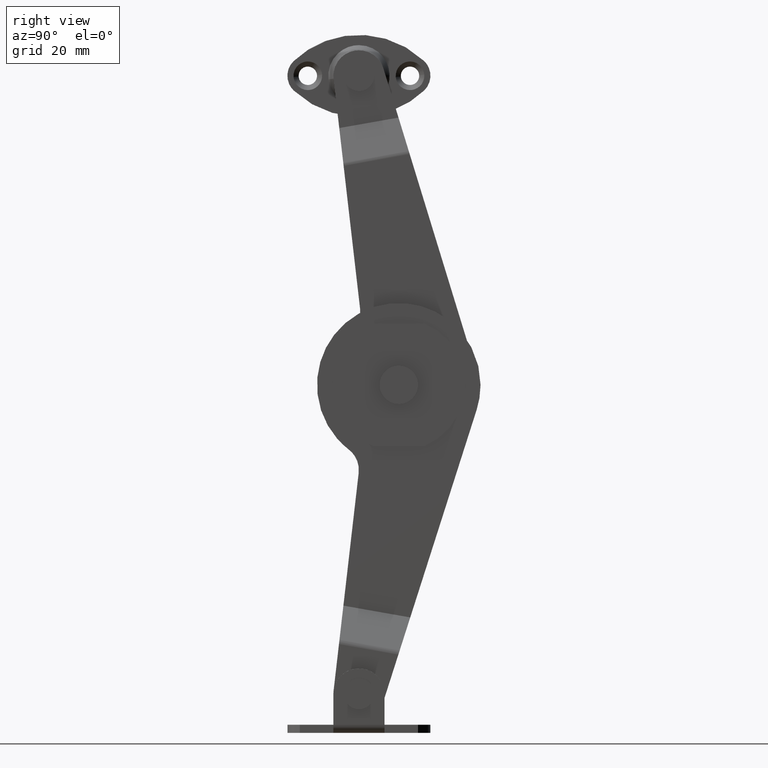
[diagram: clean part render]
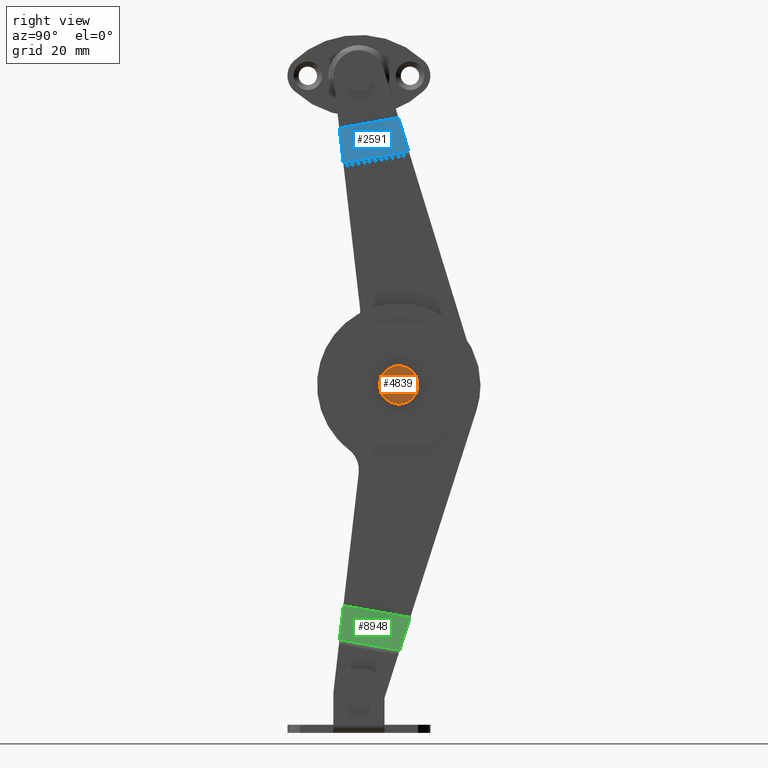
[diagram: same view with three faces highlighted in distinct colors, each labeled with its STEP entity id]
A machine part, right view with three faces highlighted in distinct colors.
Their STEP definitions:

[orange] entity #4839 — the highlighted face is a freeform B-spline surface patch.
#4267=CARTESIAN_POINT('',(14.300003000000000,11.523785723818950,0.442628380339714));
#4268=VERTEX_POINT('',#4267);
#4274=CARTESIAN_POINT('',(14.300003000000000,7.800000000000000,-3.750000000000000));
#4275=VERTEX_POINT('',#4274);
#4276=CARTESIAN_POINT('',(14.300003000000004,11.523785723818950,0.442628380339714));
#4277=CARTESIAN_POINT('',(14.300002999999995,11.549999999999997,0.222090449075516));
#4278=CARTESIAN_POINT('',(14.300003000000000,11.550000000000001,0.0));
#4279=CARTESIAN_POINT('',(14.300002999999997,11.549999999999999,-3.750000000000000));
#4280=CARTESIAN_POINT('',(14.300003000000000,7.800000000000000,-3.750000000000000));
#4288=(BOUNDED_CURVE()B_SPLINE_CURVE(2,(#4276,#4277,#4278,#4279,#4280),.UNSPECIFIED.,.F.,.U.)B_SPLINE_CURVE_WITH_KNOTS((3,2,3),(0.229562473481436,0.250000000000000,0.500000000000000),.UNSPECIFIED.)CURVE()GEOMETRIC_REPRESENTATION_ITEM()RATIONAL_B_SPLINE_CURVE((0.956026754120836,0.976055948293570,1.0,0.707106781186547,1.0))REPRESENTATION_ITEM(''));
#4289=EDGE_CURVE('',#4268,#4275,#4288,.T.);
#4291=CARTESIAN_POINT('',(14.300003000000000,4.056994505934506,-0.228932023525592));
#4292=VERTEX_POINT('',#4291);
#4293=CARTESIAN_POINT('',(14.300003000000000,7.800000000000000,-3.750000000000000));
#4294=CARTESIAN_POINT('',(14.300003000000004,4.272352249613283,-3.750000000000001));
#4295=CARTESIAN_POINT('',(14.300003000000002,4.056994505934506,-0.228932023525592));
#4303=(BOUNDED_CURVE()B_SPLINE_CURVE(2,(#4293,#4294,#4295),.UNSPECIFIED.,.F.,.U.)B_SPLINE_CURVE_WITH_KNOTS((3,3),(0.500000000000000,0.739332962217087),.UNSPECIFIED.)CURVE()GEOMETRIC_REPRESENTATION_ITEM()RATIONAL_B_SPLINE_CURVE((1.0,0.719603993312316,0.976072041619876))REPRESENTATION_ITEM(''));
#4304=EDGE_CURVE('',#4275,#4292,#4303,.T.);
#4378=CARTESIAN_POINT('',(14.300003000000000,7.800000000000000,3.750000000000000));
#4379=VERTEX_POINT('',#4378);
#4380=CARTESIAN_POINT('',(14.300003000000004,4.056994505934506,-0.228932023525592));
#4381=CARTESIAN_POINT('',(14.300002999999995,4.050000000000000,-0.114572862640343));
#4382=CARTESIAN_POINT('',(14.300003000000000,4.050000000000000,0.0));
#4383=CARTESIAN_POINT('',(14.300002999999997,4.050000000000000,3.750000000000000));
#4384=CARTESIAN_POINT('',(14.300003000000000,7.800000000000000,3.750000000000000));
#4392=(BOUNDED_CURVE()B_SPLINE_CURVE(2,(#4380,#4381,#4382,#4383,#4384),.UNSPECIFIED.,.F.,.U.)B_SPLINE_CURVE_WITH_KNOTS((3,2,3),(0.739332962217086,0.750000000000000,1.0),.UNSPECIFIED.)CURVE()GEOMETRIC_REPRESENTATION_ITEM()RATIONAL_B_SPLINE_CURVE((0.976072041619875,0.987502787874231,1.0,0.707106781186547,1.0))REPRESENTATION_ITEM(''));
#4393=EDGE_CURVE('',#4292,#4379,#4392,.T.);
#4395=CARTESIAN_POINT('',(14.300003000000000,7.800000000000000,3.750000000000000));
#4396=CARTESIAN_POINT('',(14.300003000000006,11.130654471638717,3.750000000000000));
#4397=CARTESIAN_POINT('',(14.300003000000000,11.523785723818948,0.442628380339714));
#4405=(BOUNDED_CURVE()B_SPLINE_CURVE(2,(#4395,#4396,#4397),.UNSPECIFIED.,.F.,.U.)B_SPLINE_CURVE_WITH_KNOTS((3,3),(0.0,0.229562473481436),.UNSPECIFIED.)CURVE()GEOMETRIC_REPRESENTATION_ITEM()RATIONAL_B_SPLINE_CURVE((1.0,0.731050832892977,0.956026754120836))REPRESENTATION_ITEM(''));
#4406=EDGE_CURVE('',#4379,#4268,#4405,.T.);
#4828=CARTESIAN_POINT('',(14.300003000000000,3.675466356608577,4.124624985463544));
#4829=CARTESIAN_POINT('',(14.300003000000000,3.675466356608577,-4.124625186629221));
#4830=CARTESIAN_POINT('',(14.300003000000000,11.924556777444170,4.124624985463544));
#4831=CARTESIAN_POINT('',(14.300003000000000,11.924556777444170,-4.124625186629221));
#4832=B_SPLINE_SURFACE_WITH_KNOTS('',1,1,((#4828,#4830),(#4829,#4831)),.UNSPECIFIED.,.F.,.F.,.U.,(2,2),(2,2),(0.0,8.249250172092765),(0.0,8.249090420835596),.UNSPECIFIED.);
#4833=ORIENTED_EDGE('',*,*,#4393,.F.);
#4834=ORIENTED_EDGE('',*,*,#4304,.F.);
#4835=ORIENTED_EDGE('',*,*,#4289,.F.);
#4836=ORIENTED_EDGE('',*,*,#4406,.F.);
#4837=EDGE_LOOP('',(#4833,#4834,#4835,#4836));
#4838=FACE_OUTER_BOUND('',#4837,.T.);
#4839=ADVANCED_FACE('',(#4838),#4832,.T.);

[blue] entity #2591 — the highlighted face is a freeform B-spline surface patch.
#2421=CARTESIAN_POINT('',(9.974083791157110,9.756468010732030,45.754420036426701));
#2422=VERTEX_POINT('',#2421);
#2438=CARTESIAN_POINT('',(9.974083791157080,-3.071367701159205,43.492527570003197));
#2439=VERTEX_POINT('',#2438);
#2440=CARTESIAN_POINT('',(9.974083791157080,-3.071367701159205,43.492527570003197));
#2441=CARTESIAN_POINT('',(9.974083791157110,9.756468010732030,45.754420036426701));
#2442=QUASI_UNIFORM_CURVE('',1,(#2440,#2441),.UNSPECIFIED.,.F.,.U.);
#2443=EDGE_CURVE('',#2439,#2422,#2442,.T.);
#2564=CARTESIAN_POINT('',(10.060067947821681,-4.532864770226859,43.027958753462350));
#2565=CARTESIAN_POINT('',(6.155525076772505,-4.532864770226859,52.421820834120851));
#2566=CARTESIAN_POINT('',(10.995539702068321,10.436264695622500,43.416786004464043));
#2567=CARTESIAN_POINT('',(7.090996831019139,10.436264695622500,52.810648085122537));
#2568=B_SPLINE_SURFACE_WITH_KNOTS('',1,1,((#2564,#2566),(#2565,#2567)),.UNSPECIFIED.,.F.,.F.,.U.,(2,2),(2,2),(0.0,10.173008395862791),(0.0,15.003370654605400),.UNSPECIFIED.);
#2569=CARTESIAN_POINT('',(7.100000000000001,-3.853068450372600,50.269393765866099));
#2570=VERTEX_POINT('',#2569);
#2571=CARTESIAN_POINT('',(9.974083791157080,-3.071367701159205,43.492527570003197));
#2572=CARTESIAN_POINT('',(7.100000000000001,-3.853068450372600,50.269393765866099));
#2573=QUASI_UNIFORM_CURVE('',1,(#2571,#2572),.UNSPECIFIED.,.F.,.U.);
#2574=EDGE_CURVE('',#2439,#2570,#2573,.T.);
#2575=ORIENTED_EDGE('',*,*,#2574,.F.);
#2576=ORIENTED_EDGE('',*,*,#2443,.T.);
#2577=CARTESIAN_POINT('',(7.100000000000001,7.742951846102890,52.314084042401099));
#2578=VERTEX_POINT('',#2577);
#2579=CARTESIAN_POINT('',(7.100000000000001,7.742951846102890,52.314084042401099));
#2580=CARTESIAN_POINT('',(9.974083791157110,9.756468010732030,45.754420036426701));
#2581=QUASI_UNIFORM_CURVE('',1,(#2579,#2580),.UNSPECIFIED.,.F.,.U.);
#2582=EDGE_CURVE('',#2578,#2422,#2581,.T.);
#2583=ORIENTED_EDGE('',*,*,#2582,.F.);
#2584=CARTESIAN_POINT('',(7.100000000000001,7.742951846102890,52.314084042401099));
#2585=CARTESIAN_POINT('',(7.100000000000001,-3.853068450372600,50.269393765866099));
#2586=QUASI_UNIFORM_CURVE('',1,(#2584,#2585),.UNSPECIFIED.,.F.,.U.);
#2587=EDGE_CURVE('',#2578,#2570,#2586,.T.);
#2588=ORIENTED_EDGE('',*,*,#2587,.T.);
#2589=EDGE_LOOP('',(#2575,#2576,#2583,#2588));
#2590=FACE_OUTER_BOUND('',#2589,.T.);
#2591=ADVANCED_FACE('',(#2590),#2568,.F.);

[green] entity #8948 — the highlighted face is a freeform B-spline surface patch.
#8483=CARTESIAN_POINT('',(16.543255292287949,-3.809447948490195,-49.874249352518497));
#8484=VERTEX_POINT('',#8483);
#8505=CARTESIAN_POINT('',(16.543255292287999,7.982717463441340,-51.953523536608103));
#8506=VERTEX_POINT('',#8505);
#8520=CARTESIAN_POINT('',(16.543255292287949,-3.809447948490195,-49.874249352518497));
#8521=CARTESIAN_POINT('',(16.543255292287999,7.982717463441340,-51.953523536608103));
#8522=QUASI_UNIFORM_CURVE('',1,(#8520,#8521),.UNSPECIFIED.,.F.,.U.);
#8523=EDGE_CURVE('',#8484,#8506,#8522,.T.);
#8921=CARTESIAN_POINT('',(12.055825858426090,-4.501520603399271,-42.711215536123362));
#8922=CARTESIAN_POINT('',(17.801902699438081,-4.501520603399269,-51.727099634464757));
#8923=CARTESIAN_POINT('',(10.837937386478790,10.737931294504270,-43.487410157444991));
#8924=CARTESIAN_POINT('',(16.584014227490780,10.737931294504270,-52.503294255786393));
#8925=B_SPLINE_SURFACE_WITH_KNOTS('',1,1,((#8921,#8923),(#8922,#8924)),.UNSPECIFIED.,.F.,.F.,.U.,(2,2),(2,2),(0.0,10.691284541042750),(0.0,15.307730875893609),.UNSPECIFIED.);
#8926=CARTESIAN_POINT('',(12.199999000000100,-3.040317605035705,-43.195079633390698));
#8927=VERTEX_POINT('',#8926);
#8928=CARTESIAN_POINT('',(12.199999000000100,-3.040317605035705,-43.195079633390698));
#8929=CARTESIAN_POINT('',(16.543255292287949,-3.809447948490195,-49.874249352518497));
#8930=QUASI_UNIFORM_CURVE('',1,(#8928,#8929),.UNSPECIFIED.,.F.,.U.);
#8931=EDGE_CURVE('',#8927,#8484,#8930,.T.);
#8932=ORIENTED_EDGE('',*,*,#8931,.T.);
#8933=ORIENTED_EDGE('',*,*,#8523,.T.);
#8934=CARTESIAN_POINT('',(12.199999000000121,10.045858391843000,-45.502522496364001));
#8935=VERTEX_POINT('',#8934);
#8936=CARTESIAN_POINT('',(16.543255292287999,7.982717463441340,-51.953523536608103));
#8937=CARTESIAN_POINT('',(12.199999000000121,10.045858391843000,-45.502522496364001));
#8938=QUASI_UNIFORM_CURVE('',1,(#8936,#8937),.UNSPECIFIED.,.F.,.U.);
#8939=EDGE_CURVE('',#8506,#8935,#8938,.T.);
#8940=ORIENTED_EDGE('',*,*,#8939,.T.);
#8941=CARTESIAN_POINT('',(12.199999000000100,-3.040317605035705,-43.195079633390698));
#8942=CARTESIAN_POINT('',(12.199999000000121,10.045858391843000,-45.502522496364001));
#8943=QUASI_UNIFORM_CURVE('',1,(#8941,#8942),.UNSPECIFIED.,.F.,.U.);
#8944=EDGE_CURVE('',#8927,#8935,#8943,.T.);
#8945=ORIENTED_EDGE('',*,*,#8944,.F.);
#8946=EDGE_LOOP('',(#8932,#8933,#8940,#8945));
#8947=FACE_OUTER_BOUND('',#8946,.T.);
#8948=ADVANCED_FACE('',(#8947),#8925,.T.);